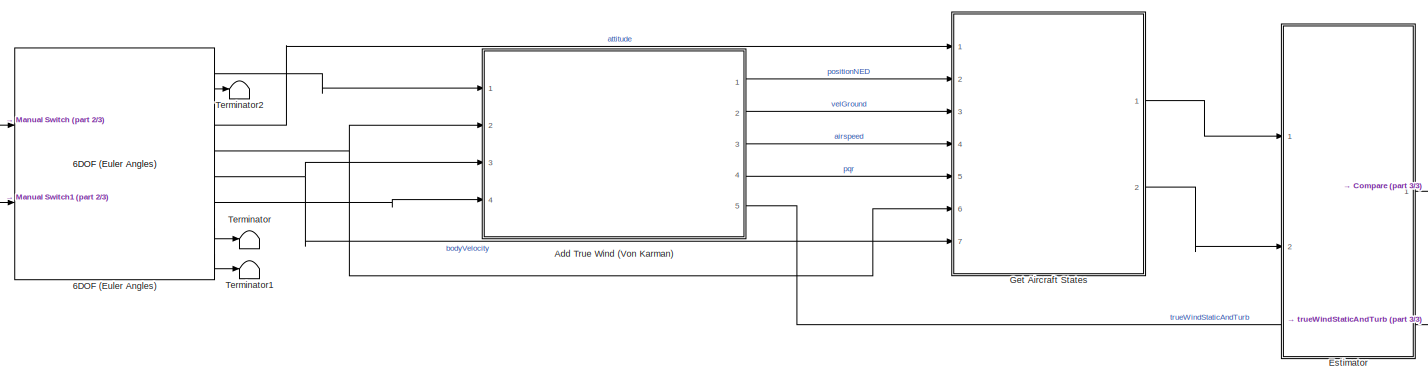
[diagram: root canvas - part 1/3, center side, full height]
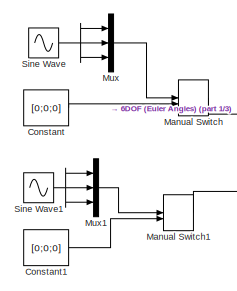
[diagram: root canvas - part 2/3, middle left region]
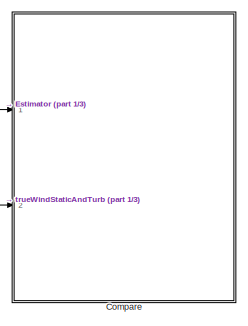
[diagram: root canvas - part 3/3, middle right region]
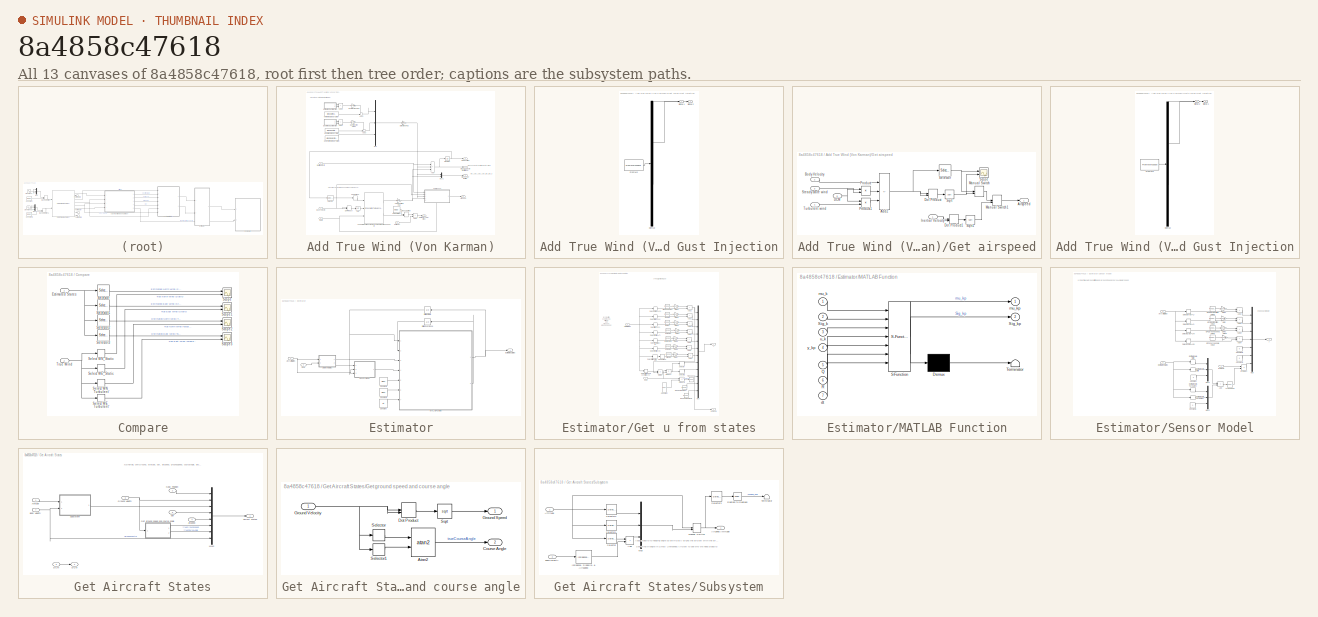
[diagram: thumbnail index - all 13 canvases of the model, root first then tree order]
MODEL slx_8a4858c47618
KIND model
CONFIG AbsTol = auto
CONFIG EnableMultiTasking = off
CONFIG FixedStep = dt
CONFIG MaxStep = auto
CONFIG MinStep = auto
CONFIG RelTol = 1e-3
CONFIG SampleTimeConstraint = Unconstrained
CONFIG Solver = ode4
CONFIG SolverName = ode4
CONFIG StartTime = 0.0
CONFIG StopTime = 100
BLOCK [Reference] 6DOF (Euler Angles)  REF=shared6dof/6DOF (Euler Angles)
  Ports = [2, 8]
  SourceBlock = shared6dof/6DOF (Euler Angles)
  SourceProductBaseCode = AE,PW,MT,VE,VP
  SourceType = 6DOF EoM (Body Axis)
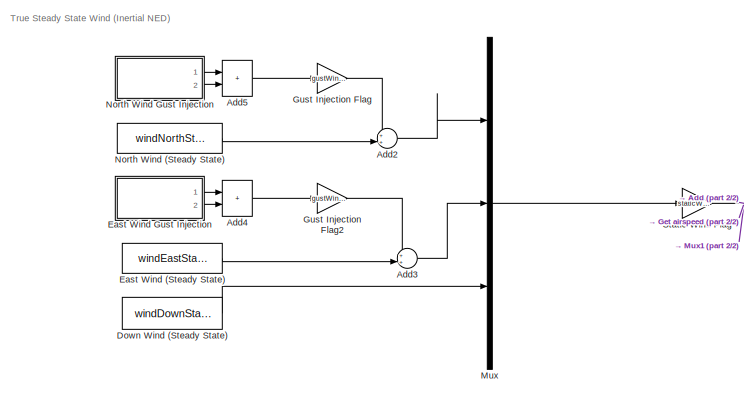
[diagram: Add True Wind (Von Karman) - part 1/2, top left region]
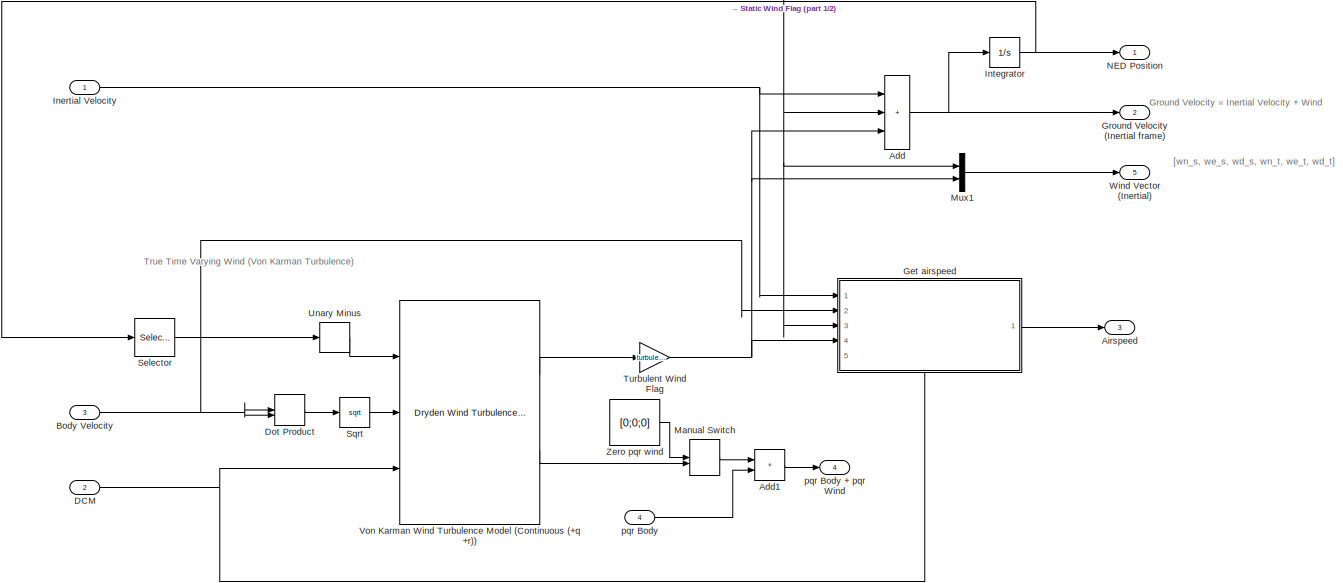
[diagram: Add True Wind (Von Karman) - part 2/2, full width, bottom band]
BLOCK [SubSystem] Add True Wind (Von Karman)
  Ports = [4, 5]
  RequestExecContextInheritance = off
BLOCK [Sum] Add True Wind (Von Karman)/Add
  IconShape = rectangular
  Inputs = +++
  Ports = [3, 1]
BLOCK [Sum] Add True Wind (Von Karman)/Add1
  IconShape = rectangular
  Ports = [2, 1]
BLOCK [Sum] Add True Wind (Von Karman)/Add2
  Inputs = ++|
  Ports = [2, 1]
BLOCK [Sum] Add True Wind (Von Karman)/Add3
  Inputs = ++|
  Ports = [2, 1]
BLOCK [Sum] Add True Wind (Von Karman)/Add4
  IconShape = rectangular
  Ports = [2, 1]
BLOCK [Sum] Add True Wind (Von Karman)/Add5
  IconShape = rectangular
  Ports = [2, 1]
BLOCK [Outport] Add True Wind (Von Karman)/Airspeed
  Port = 3
  PortDimensions = 1
BLOCK [Inport] Add True Wind (Von Karman)/Body Velocity
  Port = 3
BLOCK [Inport] Add True Wind (Von Karman)/DCM
  Port = 2
BLOCK [DotProduct] Add True Wind (Von Karman)/Dot Product
  OutDataTypeStr = Inherit: Inherit via internal rule
BLOCK [Constant] Add True Wind (Von Karman)/Down Wind (Steady State)
  Value = windDownStatic
BLOCK [Constant] Add True Wind (Von Karman)/East Wind (Steady State)
  Value = windEastStatic
BLOCK [SubSystem] Add True Wind (Von Karman)/East Wind Gust Injection
  ClipboardFcn = sigbuilder_block('clipboard');
  CloseFcn = sigbuilder_block('close');
  ContinueFcn = sigbuilder_block('continue');
  CopyFcn = sigbuilder_block('copy');
  DeleteFcn = sigbuilder_block('delete');
  LoadFcn = sigbuilder_block('load');
  MaskHideContents = on
  ModelCloseFcn = sigbuilder_block('modelClose');
  NameChangeFcn = sigbuilder_block('namechange');
  OpenFcn = sigbuilder_block('open',[0 0 607.5 297 ]);
  PauseFcn = sigbuilder_block('pause');
  Ports = [0, 2]
  PreSaveFcn = sigbuilder_block('preSave');
  RequestExecContextInheritance = off
  StartFcn = sigbuilder_block('start');
  StopFcn = sigbuilder_block('stop');
  Tag = STV Subsys
BLOCK [Demux] Add True Wind (Von Karman)/East Wind Gust Injection/Demux
  DisplayOption = none
  Outputs = 2
  Ports = [1, 2]
  Tag = STV Demux
BLOCK [FromWorkspace] Add True Wind (Von Karman)/East Wind Gust Injection/FromWs
  Tag = STV FromWs
  VariableName = tuvar
BLOCK [Outport] Add True Wind (Von Karman)/East Wind Gust Injection/Signal 1
  Tag = STV Outport
BLOCK [Outport] Add True Wind (Von Karman)/East Wind Gust Injection/Signal 2
  Port = 2
  Tag = STV Outport
BLOCK [SubSystem] Add True Wind (Von Karman)/Get airspeed
  NameLocation = top
  PortSchema = {"entries":[{"content":{"sides":[{"content":{"connectorIds":["In1","In2","In3","In4"]},"type":"ConnectorPlacement.EquallySpacedRectSide","uuid":"813c2b5b-04f3-4ec3-a969-2504c20ca38b"},{"content":{"connectorIds":["Out1"],"side":"RIGHT"},"type":"ConnectorPlacement.EquallySpacedRectSide","uuid":"9f878792-4dd4-4000-acee-7f28349bdd5f"},{"content":{"connectorIds":[],"side":"TOP"},"type":"ConnectorPlacem...<+409ch>
  Ports = [5, 1]
  RequestExecContextInheritance = off
BLOCK [Sum] Add True Wind (Von Karman)/Get airspeed/Add2
  IconShape = rectangular
  Inputs = +--
  Ports = [3, 1]
BLOCK [Outport] Add True Wind (Von Karman)/Get airspeed/Airspeed
BLOCK [Inport] Add True Wind (Von Karman)/Get airspeed/Body Velocity
  Port = 2
BLOCK [Inport] Add True Wind (Von Karman)/Get airspeed/DCM
  Port = 5
BLOCK [DotProduct] Add True Wind (Von Karman)/Get airspeed/Dot Product
  OutDataTypeStr = Inherit: Inherit via internal rule
BLOCK [DotProduct] Add True Wind (Von Karman)/Get airspeed/Dot Product1
  OutDataTypeStr = Inherit: Inherit via internal rule
BLOCK [Inport] Add True Wind (Von Karman)/Get airspeed/Inertial Velocity
BLOCK [ManualSwitch] Add True Wind (Von Karman)/Get airspeed/Manual Switch
  CurrentSetting = 0
BLOCK [ManualSwitch] Add True Wind (Von Karman)/Get airspeed/Manual Switch1
  CurrentSetting = 0
BLOCK [Product] Add True Wind (Von Karman)/Get airspeed/Product
  Multiplication = Matrix(*)
  Ports = [2, 1]
BLOCK [Product] Add True Wind (Von Karman)/Get airspeed/Product1
  Multiplication = Matrix(*)
  Ports = [2, 1]
BLOCK [Scope] Add True Wind (Von Karman)/Get airspeed/Scope
  Floating = off
  NumInputPorts = 2
  Ports = [2]
  ScopeSpecificationString = Simulink.scopes.TimeScopeBlockCfg('CurrentConfiguration', extmgr.ConfigurationSet(extmgr.Configuration('Core','General UI',true),extmgr.Configuration('Core','Source UI',true),extmgr.Configuration('Sources','WiredSimulink',true,'DataLoggingVariableName','ScopeData1'),extmgr.Configuration('Visuals','Time Domain',true,'SerializedDisplays',{struct('MinYLimReal','74.38805','MaxYLimReal','97.51649','YLa...<+1503ch>
BLOCK [Selector] Add True Wind (Von Karman)/Get airspeed/Selector
  IndexOptions = Index vector (dialog)
  Indices = 1
  InputPortWidth = 3
  OutputSizes = 1
  Ports = [1, 1]
BLOCK [Sqrt] Add True Wind (Von Karman)/Get airspeed/Sqrt
BLOCK [Sqrt] Add True Wind (Von Karman)/Get airspeed/Sqrt1
BLOCK [Inport] Add True Wind (Von Karman)/Get airspeed/Steady state wind
  Port = 3
BLOCK [Inport] Add True Wind (Von Karman)/Get airspeed/Turbulent wind
  Port = 4
BLOCK [Outport] Add True Wind (Von Karman)/Ground Velocity (Inertial frame)
  Port = 2
BLOCK [Gain] Add True Wind (Von Karman)/Gust Injection Flag
  Gain = gustWindFlag
BLOCK [Gain] Add True Wind (Von Karman)/Gust Injection Flag2
  Gain = gustWindFlag
BLOCK [Inport] Add True Wind (Von Karman)/Inertial Velocity
BLOCK [Integrator] Add True Wind (Von Karman)/Integrator
  InitialCondition = [0, 0, -abs(alt0)]
  Ports = [1, 1]
BLOCK [ManualSwitch] Add True Wind (Von Karman)/Manual Switch
BLOCK [Mux] Add True Wind (Von Karman)/Mux
  DisplayOption = bar
  Inputs = 3
  Ports = [3, 1]
BLOCK [Mux] Add True Wind (Von Karman)/Mux1
  DisplayOption = bar
  Inputs = 2
  Ports = [2, 1]
BLOCK [Outport] Add True Wind (Von Karman)/NED Position
  PortDimensions = 3
BLOCK [Constant] Add True Wind (Von Karman)/North Wind (Steady State)
  Value = windNorthStatic
BLOCK [SubSystem] Add True Wind (Von Karman)/North Wind Gust Injection
  ClipboardFcn = sigbuilder_block('clipboard');
  CloseFcn = sigbuilder_block('close');
  ContinueFcn = sigbuilder_block('continue');
  CopyFcn = sigbuilder_block('copy');
  DeleteFcn = sigbuilder_block('delete');
  LoadFcn = sigbuilder_block('load');
  MaskHideContents = on
  ModelCloseFcn = sigbuilder_block('modelClose');
  NameChangeFcn = sigbuilder_block('namechange');
  OpenFcn = sigbuilder_block('open',[0 0 607.5 297 ]);
  PauseFcn = sigbuilder_block('pause');
  Ports = [0, 2]
  PreSaveFcn = sigbuilder_block('preSave');
  RequestExecContextInheritance = off
  StartFcn = sigbuilder_block('start');
  StopFcn = sigbuilder_block('stop');
  Tag = STV Subsys
BLOCK [Demux] Add True Wind (Von Karman)/North Wind Gust Injection/Demux
  DisplayOption = none
  Outputs = 2
  Ports = [1, 2]
  Tag = STV Demux
BLOCK [FromWorkspace] Add True Wind (Von Karman)/North Wind Gust Injection/FromWs
  Tag = STV FromWs
  VariableName = tuvar
BLOCK [Outport] Add True Wind (Von Karman)/North Wind Gust Injection/Signal 1
  Port = 2
  Tag = STV Outport
BLOCK [Outport] Add True Wind (Von Karman)/North Wind Gust Injection/Signal 2
  Tag = STV Outport
BLOCK [Selector] Add True Wind (Von Karman)/Selector
  IndexOptions = Index vector (dialog)
  Indices = 3
  InputPortWidth = 3
  OutputSizes = 1
  Ports = [1, 1]
BLOCK [Sqrt] Add True Wind (Von Karman)/Sqrt
BLOCK [Gain] Add True Wind (Von Karman)/Static Wind Flag
  Gain = staticWindFlag
BLOCK [Gain] Add True Wind (Von Karman)/Turbulent Wind Flag
  Gain = turbulentWindFlag
BLOCK [UnaryMinus] Add True Wind (Von Karman)/Unary Minus
BLOCK [Reference] Add True Wind (Von Karman)/Von Karman Wind Turbulence Model (Continuous (+q +r))  REF=aerolibwind2/Dryden Wind Turbulence Model 
(Continuous (+q -r))
  Ports = [3, 2]
  SourceBlock = aerolibwind2/Dryden Wind Turbulence Model \n(Continuous (+q -r))
  SourceProductBaseCode = AE
  SourceType = Wind Turbulence Model
BLOCK [Outport] Add True Wind (Von Karman)/Wind Vector (Inertial)
  Port = 5
BLOCK [Constant] Add True Wind (Von Karman)/Zero pqr wind
  Value = [0;0;0]
BLOCK [Inport] Add True Wind (Von Karman)/pqr Body
  Port = 4
BLOCK [Outport] Add True Wind (Von Karman)/pqr Body + pqr Wind
  Port = 4
BLOCK [SubSystem] Compare
  Ports = [2]
  RequestExecContextInheritance = off
BLOCK [Inport] Compare/Estimated States
BLOCK [Scope] Compare/Scope
  Floating = off
  NumInputPorts = 2
  Ports = [2]
  ScopeSpecificationString = Simulink.scopes.TimeScopeBlockCfg('CurrentConfiguration', extmgr.ConfigurationSet(extmgr.Configuration('Core','General UI',true),extmgr.Configuration('Core','Source UI',true),extmgr.Configuration('Sources','WiredSimulink',true),extmgr.Configuration('Visuals','Time Domain',true,'SerializedDisplays',{struct('MinYLimReal','-384.04566','MaxYLimReal','42.67174','YLabelReal','','MinYLimMag',' 0.00000','...<+1468ch>
BLOCK [Scope] Compare/Scope1
  Floating = off
  NumInputPorts = 2
  Ports = [2]
  ScopeSpecificationString = Simulink.scopes.TimeScopeBlockCfg('CurrentConfiguration', extmgr.ConfigurationSet(extmgr.Configuration('Core','General UI',true),extmgr.Configuration('Core','Source UI',true),extmgr.Configuration('Sources','WiredSimulink',true,'DataLoggingVariableName','ScopeData2'),extmgr.Configuration('Visuals','Time Domain',true,'SerializedDisplays',{struct('MinYLimReal','-92.48403','MaxYLimReal','92.25057','YL...<+1498ch>
BLOCK [Scope] Compare/Scope2
  Floating = off
  NumInputPorts = 2
  Ports = [2]
  ScopeSpecificationString = Simulink.scopes.TimeScopeBlockCfg('CurrentConfiguration', extmgr.ConfigurationSet(extmgr.Configuration('Core','General UI',true),extmgr.Configuration('Core','Source UI',true),extmgr.Configuration('Sources','WiredSimulink',true,'DataLoggingVariableName','ScopeData1'),extmgr.Configuration('Visuals','Time Domain',true,'SerializedDisplays',{struct('MinYLimReal','-94.84977','MaxYLimReal','104.36451','Y...<+1502ch>
BLOCK [Scope] Compare/Scope3
  Floating = off
  NumInputPorts = 2
  Ports = [2]
  ScopeSpecificationString = Simulink.scopes.TimeScopeBlockCfg('CurrentConfiguration', extmgr.ConfigurationSet(extmgr.Configuration('Core','General UI',true),extmgr.Configuration('Core','Source UI',true),extmgr.Configuration('Sources','WiredSimulink',true,'DataLoggingVariableName','ScopeData2'),extmgr.Configuration('Visuals','Time Domain',true,'SerializedDisplays',{struct('MinYLimReal','-94.84977','MaxYLimReal','104.36451','Y...<+1502ch>
BLOCK [Selector] Compare/Select WE_Static
  IndexOptions = Index vector (dialog)
  Indices = 2
  InputPortWidth = 6
  OutputSizes = 1
  Ports = [1, 1]
BLOCK [Selector] Compare/Select WE_Turbulent
  IndexOptions = Index vector (dialog)
  Indices = 5
  InputPortWidth = 6
  OutputSizes = 1
  Ports = [1, 1]
BLOCK [Selector] Compare/Select WN_Static
  IndexOptions = Index vector (dialog)
  Indices = 1
  InputPortWidth = 6
  OutputSizes = 1
  Ports = [1, 1]
BLOCK [Selector] Compare/Select WN_Turbulent
  IndexOptions = Index vector (dialog)
  Indices = 4
  InputPortWidth = 6
  OutputSizes = 1
  Ports = [1, 1]
BLOCK [Selector] Compare/Selector
  IndexOptions = Index vector (dialog)
  Indices = 5
  InputPortWidth = nEstStates
  OutputSizes = 1
  Ports = [1, 1]
BLOCK [Selector] Compare/Selector1
  IndexOptions = Index vector (dialog)
  Indices = 6
  InputPortWidth = nEstStates
  OutputSizes = 1
  Ports = [1, 1]
BLOCK [Selector] Compare/Selector2
  IndexOptions = Index vector (dialog)
  Indices = 7
  InputPortWidth = nEstStates
  OutputSizes = 1
  Ports = [1, 1]
BLOCK [Selector] Compare/Selector3
  IndexOptions = Index vector (dialog)
  Indices = 8
  InputPortWidth = nEstStates
  OutputSizes = 1
  Ports = [1, 1]
BLOCK [Inport] Compare/True Wind
  Port = 2
BLOCK [Constant] Constant
  Value = [0;0;0]
BLOCK [Constant] Constant1
  Value = [0;0;0]
BLOCK [SubSystem] Estimator
  Ports = [2, 1]
  RequestExecContextInheritance = off
BLOCK [Inport] Estimator/Aircraft States
BLOCK [Constant] Estimator/Constant
  Value = dt
BLOCK [Constant] Estimator/Constant1
  Value = Qekf
BLOCK [Constant] Estimator/Constant2
  Value = Rekf
BLOCK [Inport] Estimator/DCM
  Port = 2
BLOCK [Outport] Estimator/Estimated States
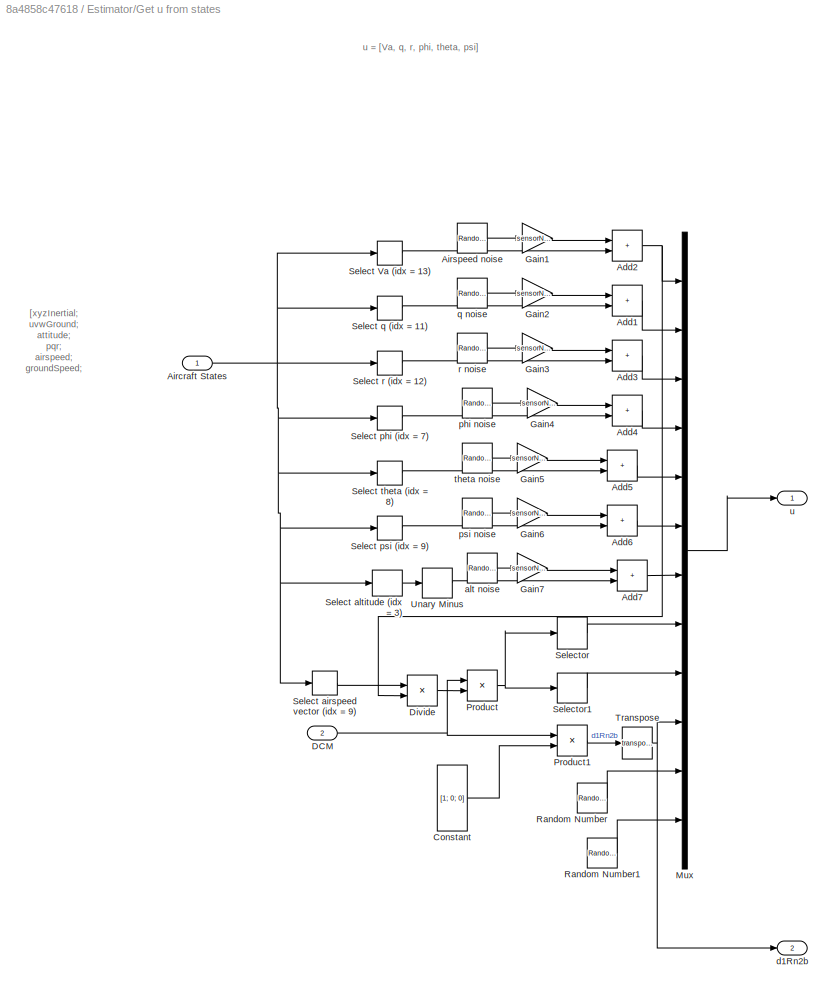
BLOCK [SubSystem] Estimator/Get u from states
  Ports = [2, 2]
  RequestExecContextInheritance = off
BLOCK [Sum] Estimator/Get u from states/Add1
  IconShape = rectangular
  Ports = [2, 1]
BLOCK [Sum] Estimator/Get u from states/Add2
  IconShape = rectangular
  Ports = [2, 1]
BLOCK [Sum] Estimator/Get u from states/Add3
  IconShape = rectangular
  Ports = [2, 1]
BLOCK [Sum] Estimator/Get u from states/Add4
  IconShape = rectangular
  Ports = [2, 1]
BLOCK [Sum] Estimator/Get u from states/Add5
  IconShape = rectangular
  Ports = [2, 1]
BLOCK [Sum] Estimator/Get u from states/Add6
  IconShape = rectangular
  Ports = [2, 1]
BLOCK [Sum] Estimator/Get u from states/Add7
  IconShape = rectangular
  Ports = [2, 1]
BLOCK [Inport] Estimator/Get u from states/Aircraft States
BLOCK [RandomNumber] Estimator/Get u from states/Airspeed noise
  SampleTime = dt
  Variance = var.airspeed_mps
BLOCK [Constant] Estimator/Get u from states/Constant
  Value = [1; 0; 0]
  VectorParams1D = off
BLOCK [Inport] Estimator/Get u from states/DCM
  Port = 2
BLOCK [Product] Estimator/Get u from states/Divide
  Inputs = */
  Ports = [2, 1]
BLOCK [Gain] Estimator/Get u from states/Gain1
  Gain = sensorNoiseFlag
BLOCK [Gain] Estimator/Get u from states/Gain2
  Gain = sensorNoiseFlag
BLOCK [Gain] Estimator/Get u from states/Gain3
  Gain = sensorNoiseFlag
BLOCK [Gain] Estimator/Get u from states/Gain4
  Gain = sensorNoiseFlag
BLOCK [Gain] Estimator/Get u from states/Gain5
  Gain = sensorNoiseFlag
BLOCK [Gain] Estimator/Get u from states/Gain6
  Gain = sensorNoiseFlag
BLOCK [Gain] Estimator/Get u from states/Gain7
  Gain = sensorNoiseFlag
BLOCK [Mux] Estimator/Get u from states/Mux
  DisplayOption = bar
  Inputs = 12
  Ports = [12, 1]
BLOCK [Product] Estimator/Get u from states/Product
  Multiplication = Matrix(*)
  Ports = [2, 1]
BLOCK [Product] Estimator/Get u from states/Product1
  Multiplication = Matrix(*)
  Ports = [2, 1]
BLOCK [RandomNumber] Estimator/Get u from states/Random Number
  SampleTime = 0.1
BLOCK [RandomNumber] Estimator/Get u from states/Random Number1
  SampleTime = 0.1
  Seed = 100
BLOCK [Selector] Estimator/Get u from states/Select Va (idx = 13)
  IndexOptions = Index vector (dialog)
  Indices = 13
  InputPortWidth = nStates
  OutputSizes = 1
  Ports = [1, 1]
BLOCK [Selector] Estimator/Get u from states/Select airspeed vector (idx = 9)
  IndexOptions = Index vector (dialog)
  Indices = [16:18]
  InputPortWidth = nStates
  OutputSizes = 1
  Ports = [1, 1]
BLOCK [Selector] Estimator/Get u from states/Select altitude (idx = 3)
  IndexOptions = Index vector (dialog)
  Indices = 3
  InputPortWidth = nStates
  OutputSizes = 1
  Ports = [1, 1]
BLOCK [Selector] Estimator/Get u from states/Select phi (idx = 7)
  IndexOptions = Index vector (dialog)
  Indices = 7
  InputPortWidth = nStates
  OutputSizes = 1
  Ports = [1, 1]
BLOCK [Selector] Estimator/Get u from states/Select psi (idx = 9)
  IndexOptions = Index vector (dialog)
  Indices = 9
  InputPortWidth = nStates
  OutputSizes = 1
  Ports = [1, 1]
BLOCK [Selector] Estimator/Get u from states/Select q (idx = 11)
  IndexOptions = Index vector (dialog)
  Indices = 11
  InputPortWidth = nStates
  OutputSizes = 1
  Ports = [1, 1]
BLOCK [Selector] Estimator/Get u from states/Select r (idx = 12)
  IndexOptions = Index vector (dialog)
  Indices = 12
  InputPortWidth = nStates
  OutputSizes = 1
  Ports = [1, 1]
BLOCK [Selector] Estimator/Get u from states/Select theta (idx = 8)
  IndexOptions = Index vector (dialog)
  Indices = 8
  InputPortWidth = nStates
  OutputSizes = 1
  Ports = [1, 1]
BLOCK [Selector] Estimator/Get u from states/Selector
  IndexOptions = Index vector (dialog)
  Indices = 1
  InputPortWidth = 3
  OutputSizes = 1
  Ports = [1, 1]
BLOCK [Selector] Estimator/Get u from states/Selector1
  IndexOptions = Index vector (dialog)
  Indices = 2
  InputPortWidth = 3
  OutputSizes = 1
  Ports = [1, 1]
BLOCK [Math] Estimator/Get u from states/Transpose
  Operator = transpose
  Ports = [1, 1]
BLOCK [UnaryMinus] Estimator/Get u from states/Unary Minus
BLOCK [RandomNumber] Estimator/Get u from states/alt noise
  SampleTime = dt
  Variance = var.altitude_m
BLOCK [Outport] Estimator/Get u from states/d1Rn2b
  Port = 2
BLOCK [RandomNumber] Estimator/Get u from states/phi noise
  SampleTime = dt
  Variance = var.attitude_rad
BLOCK [RandomNumber] Estimator/Get u from states/psi noise
  SampleTime = dt
  Variance = var.attitude_rad * 4
BLOCK [RandomNumber] Estimator/Get u from states/q noise
  SampleTime = 0.1
  Variance = var.pqr_radps
BLOCK [RandomNumber] Estimator/Get u from states/r noise
  SampleTime = dt
  Variance = var.pqr_radps
BLOCK [RandomNumber] Estimator/Get u from states/theta noise
  SampleTime = dt
  Variance = var.attitude_rad
BLOCK [Outport] Estimator/Get u from states/u
BLOCK [UnitDelay] Estimator/Initial Covariance
  HasFrameUpgradeWarning = on
  InitialCondition = initCovarianceEkf
  SampleTime = -1
BLOCK [UnitDelay] Estimator/Initial Estimate
  HasFrameUpgradeWarning = on
  InitialCondition = initEstimateEkf
  SampleTime = -1
BLOCK [SubSystem] Estimator/MATLAB Function
  ErrorFcn = Stateflow.Translate.translate
  PermitHierarchicalResolution = ExplicitOnly
  Ports = [7, 2]
  RequestExecContextInheritance = off
  SFBlockType = MATLAB Function
  TreatAsAtomicUnit = on
BLOCK [Demux] Estimator/MATLAB Function/ Demux 
  Outputs = 1
  Ports = [1, 1]
BLOCK [S-Function] Estimator/MATLAB Function/ SFunction 
  EnableBusSupport = on
  FunctionName = sf_sfun
  PortCounts = [7 3]
  Ports = [7, 3]
  SFcnIsStateOwnerBlock = off
  SFunctionDeploymentMode = off
  Tag = Stateflow S-Function 5
BLOCK [Terminator] Estimator/MATLAB Function/ Terminator 
BLOCK [Inport] Estimator/MATLAB Function/Q
  Port = 5
BLOCK [Inport] Estimator/MATLAB Function/R
  Port = 6
BLOCK [Inport] Estimator/MATLAB Function/Sig_k
  Port = 2
BLOCK [Outport] Estimator/MATLAB Function/Sig_kp
  Port = 2
BLOCK [Inport] Estimator/MATLAB Function/dt
  Port = 7
BLOCK [Inport] Estimator/MATLAB Function/mu_k
BLOCK [Outport] Estimator/MATLAB Function/mu_kp
BLOCK [Inport] Estimator/MATLAB Function/u_k
  Port = 3
BLOCK [Inport] Estimator/MATLAB Function/y_kp
  Port = 4
BLOCK [SubSystem] Estimator/Sensor Model
  Ports = [3, 1]
  RequestExecContextInheritance = off
BLOCK [Sum] Estimator/Sensor Model/Add
  IconShape = rectangular
  Ports = [2, 1]
BLOCK [Sum] Estimator/Sensor Model/Add1
  IconShape = rectangular
  Ports = [2, 1]
BLOCK [Sum] Estimator/Sensor Model/Add2
  IconShape = rectangular
  Ports = [2, 1]
BLOCK [Sum] Estimator/Sensor Model/Add3
  IconShape = rectangular
  Ports = [2, 1]
BLOCK [Sum] Estimator/Sensor Model/Add4
  IconShape = rectangular
  Ports = [2, 1]
BLOCK [Inport] Estimator/Sensor Model/Aircraft States
  Port = 2
BLOCK [Constant] Estimator/Sensor Model/Constant
  Value = 0
BLOCK [Constant] Estimator/Sensor Model/Constant1
  Value = 0
BLOCK [Constant] Estimator/Sensor Model/Constant2
  Value = 0
BLOCK [Constant] Estimator/Sensor Model/Constant3
  Value = 0
BLOCK [Inport] Estimator/Sensor Model/Estimated States
  Port = 3
BLOCK [Selector] Estimator/Sensor Model/Estimated WE Static
  IndexOptions = Index vector (dialog)
  Indices = 6
  InputPortWidth = nEstStates
  OutputSizes = 1
  Ports = [1, 1]
BLOCK [Selector] Estimator/Sensor Model/Estimated WE Turbulent
  IndexOptions = Index vector (dialog)
  Indices = 8
  InputPortWidth = nEstStates
  OutputSizes = 1
  Ports = [1, 1]
BLOCK [Selector] Estimator/Sensor Model/Estimated WN Static
  IndexOptions = Index vector (dialog)
  Indices = 5
  InputPortWidth = nEstStates
  OutputSizes = 1
  Ports = [1, 1]
BLOCK [Selector] Estimator/Sensor Model/Estimated WN Turbulent
  IndexOptions = Index vector (dialog)
  Indices = 7
  InputPortWidth = nEstStates
  OutputSizes = 1
  Ports = [1, 1]
BLOCK [RandomNumber] Estimator/Sensor Model/GPS East position noise
  SampleTime = dt
  Variance = var.position_m
BLOCK [RandomNumber] Estimator/Sensor Model/GPS North position noise
  SampleTime = dt
  Variance = var.position_m
BLOCK [RandomNumber] Estimator/Sensor Model/GPS course angle noise
  SampleTime = dt
  Variance = var.attitude_rad
BLOCK [RandomNumber] Estimator/Sensor Model/GPS ground speed noise
  SampleTime = dt
  Variance = var.velocityGps_mps
BLOCK [Gain] Estimator/Sensor Model/Gain
  Gain = sensorNoiseFlag
BLOCK [Gain] Estimator/Sensor Model/Gain1
  Gain = sensorNoiseFlag
BLOCK [Gain] Estimator/Sensor Model/Gain2
  Gain = sensorNoiseFlag
BLOCK [Gain] Estimator/Sensor Model/Gain3
  Gain = sensorNoiseFlag
BLOCK [Mux] Estimator/Sensor Model/Mux
  DisplayOption = bar
  Inputs = 7
  Ports = [7, 1]
BLOCK [Mux] Estimator/Sensor Model/Mux1
  DisplayOption = bar
  Inputs = 3
  Ports = [3, 1]
BLOCK [Mux] Estimator/Sensor Model/Mux2
  DisplayOption = bar
  Inputs = 3
  Ports = [3, 1]
BLOCK [Product] Estimator/Sensor Model/Product
  Multiplication = Matrix(*)
  Ports = [2, 1]
BLOCK [Selector] Estimator/Sensor Model/Select chi (idx = 15)
  IndexOptions = Index vector (dialog)
  Indices = 15
  InputPortWidth = nStates
  OutputSizes = 1
  Ports = [1, 1]
BLOCK [Selector] Estimator/Sensor Model/Select pe (idx = 2)
  IndexOptions = Index vector (dialog)
  Indices = 2
  InputPortWidth = nStates
  OutputSizes = 1
  Ports = [1, 1]
BLOCK [Selector] Estimator/Sensor Model/Select pn (idx = 1)
  IndexOptions = Index vector (dialog)
  Indices = 1
  InputPortWidth = nStates
  OutputSizes = 1
  Ports = [1, 1]
BLOCK [Selector] Estimator/Sensor Model/Select vg (idx = 14)
  IndexOptions = Index vector (dialog)
  Indices = 14
  InputPortWidth = nStates
  OutputSizes = 1
  Ports = [1, 1]
BLOCK [Math] Estimator/Sensor Model/Transpose
  Operator = transpose
  Ports = [1, 1]
BLOCK [Inport] Estimator/Sensor Model/d1Rn2b
BLOCK [Outport] Estimator/Sensor Model/y
BLOCK [SubSystem] Get Aircraft States
  Ports = [7, 2]
  RequestExecContextInheritance = off
BLOCK [Outport] Get Aircraft States/Aircraft States
BLOCK [Inport] Get Aircraft States/Airspeed
  Port = 4
BLOCK [Inport] Get Aircraft States/Attitude
BLOCK [Inport] Get Aircraft States/Body Velocity
  Port = 7
BLOCK [Outport] Get Aircraft States/DCM
  Port = 2
BLOCK [Inport] Get Aircraft States/DCM 
  Port = 6
BLOCK [SubSystem] Get Aircraft States/Get ground speed and course angle
  Ports = [1, 2]
  RequestExecContextInheritance = off
BLOCK [Trigonometry] Get Aircraft States/Get ground speed and course angle/Atan2
  Operator = atan2
  Ports = [2, 1]
BLOCK [Outport] Get Aircraft States/Get ground speed and course angle/Course Angle
  Port = 2
BLOCK [DotProduct] Get Aircraft States/Get ground speed and course angle/Dot Product
  OutDataTypeStr = Inherit: Inherit via internal rule
BLOCK [Outport] Get Aircraft States/Get ground speed and course angle/Ground Speed
BLOCK [Inport] Get Aircraft States/Get ground speed and course angle/Ground Velocity
BLOCK [Selector] Get Aircraft States/Get ground speed and course angle/Selector
  IndexOptions = Index vector (dialog)
  Indices = 2
  InputPortWidth = 3
  OutputSizes = 1
  Ports = [1, 1]
BLOCK [Selector] Get Aircraft States/Get ground speed and course angle/Selector1
  IndexOptions = Index vector (dialog)
  Indices = 1
  InputPortWidth = 3
  OutputSizes = 1
  Ports = [1, 1]
BLOCK [Sqrt] Get Aircraft States/Get ground speed and course angle/Sqrt
BLOCK [Inport] Get Aircraft States/Ground Velocity
  Port = 3
BLOCK [Mux] Get Aircraft States/Mux2
  DisplayOption = bar
  Inputs = 8
  Ports = [8, 1]
BLOCK [Inport] Get Aircraft States/NED Position
  Port = 2
BLOCK [SubSystem] Get Aircraft States/Subsystem
  Ports = [2, 1]
  RequestExecContextInheritance = off
BLOCK [Sum] Get Aircraft States/Subsystem/Add
  IconShape = rectangular
  Ports = [2, 1]
BLOCK [Outport] Get Aircraft States/Subsystem/Aligned Attitude
BLOCK [Inport] Get Aircraft States/Subsystem/Attitude
BLOCK [Reference] Get Aircraft States/Subsystem/Incidence, Sideslip, & Airspeed  REF=aerolibasang/Incidence, Sideslip,
& Airspeed
  Ports = [1, 3]
  SourceBlock = aerolibasang/Incidence, Sideslip,\n& Airspeed
  SourceProductBaseCode = AE
  SourceType = Incidence,Sideslip,&Airspeed
BLOCK [ManualSwitch] Get Aircraft States/Subsystem/Manual Switch
BLOCK [Mux] Get Aircraft States/Subsystem/Mux
  DisplayOption = bar
  Inputs = 3
  Ports = [3, 1]
BLOCK [Reference] Get Aircraft States/Subsystem/Radians to Degrees  REF=simulink_extras/Transformations/Radians
to Degrees
  Ports = [1, 1]
  SourceBlock = simulink_extras/Transformations/Radians\nto Degrees
  SourceProductBaseCode = SL
  SourceType = RadiansToDegrees
BLOCK [Selector] Get Aircraft States/Subsystem/Selector
  IndexOptions = Index vector (dialog)
  Indices = 3
  InputPortWidth = 3
  OutputSizes = 1
  Ports = [1, 1]
BLOCK [Selector] Get Aircraft States/Subsystem/Selector1
  IndexOptions = Index vector (dialog)
  Indices = 2
  InputPortWidth = 3
  OutputSizes = 1
  Ports = [1, 1]
BLOCK [Selector] Get Aircraft States/Subsystem/Selector2
  IndexOptions = Index vector (dialog)
  Indices = 1
  InputPortWidth = 3
  OutputSizes = 1
  Ports = [1, 1]
BLOCK [Selector] Get Aircraft States/Subsystem/Selector3
  IndexOptions = Index vector (dialog)
  Indices = 3
  InputPortWidth = 3
  OutputSizes = 1
  Ports = [1, 1]
BLOCK [Terminator] Get Aircraft States/Subsystem/Terminator
BLOCK [Inport] Get Aircraft States/Subsystem/bodyVelocity
  Port = 2
BLOCK [Inport] Get Aircraft States/pqr
  Port = 5
BLOCK [ManualSwitch] Manual Switch
  CurrentSetting = 0
BLOCK [ManualSwitch] Manual Switch1
  CurrentSetting = 0
BLOCK [Mux] Mux
  DisplayOption = bar
  Inputs = 3
  Ports = [3, 1]
BLOCK [Mux] Mux1
  DisplayOption = bar
  Inputs = 3
  Ports = [3, 1]
BLOCK [Sin] Sine Wave
  Ports = [0, 1]
  SampleTime = 0
BLOCK [Sin] Sine Wave1
  Ports = [0, 1]
  SampleTime = 0
BLOCK [Terminator] Terminator
BLOCK [Terminator] Terminator1
BLOCK [Terminator] Terminator2
ANNOTATION Add True Wind (Von Karman): Ground Velocity = Inertial Velocity + Wind
ANNOTATION Add True Wind (Von Karman): True Steady State Wind (Inertial NED)
ANNOTATION Add True Wind (Von Karman): True Time Varying Wind (Von Karman Turbulence)
ANNOTATION Add True Wind (Von Karman): [wn_s, we_s, wd_s, wn_t, we_t, wd_t]
ANNOTATION Estimator/Get u from states: [xyzInertial; uvwGround; attitude; pqr; airspeed; groundSpeed; courseAngle]
ANNOTATION Estimator/Get u from states: u = [Va, q, r, phi, theta, psi]
ANNOTATION Estimator/Sensor Model: pn, pe, vg, chi, wn, we
ANNOTATION Estimator/Sensor Model: xyzInertial, uvwGround, attitude, pqr, groundSpeed, courseAngle, airspeed
ANNOTATION Get Aircraft States: xyzInertial, uvwGround, attitude, pqr, airspeed, groundSpeed, courseAngle, airspeed vector
ANNOTATION Get Aircraft States/Subsystem: Adds sideslip to heading angle so artificially aligns the aircraft with the air-relative velocity with no sideslip. See wind triangle in Small Unmanned Aircraft to see why we need sideslip
LINE 6DOF (Euler Angles):1 -> Add True Wind (Von Karman):1
LINE 6DOF (Euler Angles):2 -> Terminator2:1
LINE 6DOF (Euler Angles):3 -> Get Aircraft States:1
NET 6DOF (Euler Angles):4 -> Add True Wind (Von Karman):2, Get Aircraft States:6
NET 6DOF (Euler Angles):5 -> Add True Wind (Von Karman):3, Get Aircraft States:7
LINE 6DOF (Euler Angles):6 -> Add True Wind (Von Karman):4
LINE 6DOF (Euler Angles):7 -> Terminator:1
LINE 6DOF (Euler Angles):8 -> Terminator1:1
LINE Add True Wind (Von Karman)/Add1:1 -> Add True Wind (Von Karman)/pqr Body + pqr Wind:1
LINE Add True Wind (Von Karman)/Add2:1 -> Add True Wind (Von Karman)/Mux:1
LINE Add True Wind (Von Karman)/Add3:1 -> Add True Wind (Von Karman)/Mux:2
LINE Add True Wind (Von Karman)/Add4:1 -> Add True Wind (Von Karman)/Gust Injection Flag2:1
LINE Add True Wind (Von Karman)/Add5:1 -> Add True Wind (Von Karman)/Gust Injection Flag:1
NET Add True Wind (Von Karman)/Add:1 -> Add True Wind (Von Karman)/Ground Velocity (Inertial frame):1, Add True Wind (Von Karman)/Integrator:1
NET Add True Wind (Von Karman)/Body Velocity:1 -> Add True Wind (Von Karman)/Dot Product:1, Add True Wind (Von Karman)/Dot Product:2, Add True Wind (Von Karman)/Get airspeed:2
NET Add True Wind (Von Karman)/DCM:1 -> Add True Wind (Von Karman)/Get airspeed:5, Add True Wind (Von Karman)/Von Karman Wind Turbulence Model (Continuous (+q +r)):3
LINE Add True Wind (Von Karman)/Dot Product:1 -> Add True Wind (Von Karman)/Sqrt:1
LINE Add True Wind (Von Karman)/Down Wind (Steady State):1 -> Add True Wind (Von Karman)/Mux:3
LINE Add True Wind (Von Karman)/East Wind (Steady State):1 -> Add True Wind (Von Karman)/Add3:2
LINE Add True Wind (Von Karman)/East Wind Gust Injection:1 -> Add True Wind (Von Karman)/Add4:1
LINE Add True Wind (Von Karman)/East Wind Gust Injection:2 -> Add True Wind (Von Karman)/Add4:2
NET Add True Wind (Von Karman)/Get airspeed/Add2:1 -> Add True Wind (Von Karman)/Get airspeed/Dot Product:1, Add True Wind (Von Karman)/Get airspeed/Dot Product:2, Add True Wind (Von Karman)/Get airspeed/Selector:1
LINE Add True Wind (Von Karman)/Get airspeed/Body Velocity:1 -> Add True Wind (Von Karman)/Get airspeed/Add2:1
NET Add True Wind (Von Karman)/Get airspeed/DCM:1 -> Add True Wind (Von Karman)/Get airspeed/Product1:1, Add True Wind (Von Karman)/Get airspeed/Product:1
LINE Add True Wind (Von Karman)/Get airspeed/Dot Product1:1 -> Add True Wind (Von Karman)/Get airspeed/Sqrt1:1
LINE Add True Wind (Von Karman)/Get airspeed/Dot Product:1 -> Add True Wind (Von Karman)/Get airspeed/Sqrt:1
NET Add True Wind (Von Karman)/Get airspeed/Inertial Velocity:1 -> Add True Wind (Von Karman)/Get airspeed/Dot Product1:1, Add True Wind (Von Karman)/Get airspeed/Dot Product1:2
LINE Add True Wind (Von Karman)/Get airspeed/Manual Switch1:1 -> Add True Wind (Von Karman)/Get airspeed/Airspeed:1
LINE Add True Wind (Von Karman)/Get airspeed/Manual Switch:1 -> Add True Wind (Von Karman)/Get airspeed/Manual Switch1:1
LINE Add True Wind (Von Karman)/Get airspeed/Product1:1 -> Add True Wind (Von Karman)/Get airspeed/Add2:3
LINE Add True Wind (Von Karman)/Get airspeed/Product:1 -> Add True Wind (Von Karman)/Get airspeed/Add2:2
NET Add True Wind (Von Karman)/Get airspeed/Selector:1 -> Add True Wind (Von Karman)/Get airspeed/Manual Switch:1, Add True Wind (Von Karman)/Get airspeed/Scope:1
LINE Add True Wind (Von Karman)/Get airspeed/Sqrt1:1 -> Add True Wind (Von Karman)/Get airspeed/Manual Switch1:2
NET Add True Wind (Von Karman)/Get airspeed/Sqrt:1 -> Add True Wind (Von Karman)/Get airspeed/Manual Switch:2, Add True Wind (Von Karman)/Get airspeed/Scope:2
LINE Add True Wind (Von Karman)/Get airspeed/Steady state wind:1 -> Add True Wind (Von Karman)/Get airspeed/Product:2
LINE Add True Wind (Von Karman)/Get airspeed/Turbulent wind:1 -> Add True Wind (Von Karman)/Get airspeed/Product1:2
LINE Add True Wind (Von Karman)/Get airspeed:1 -> Add True Wind (Von Karman)/Airspeed:1
LINE Add True Wind (Von Karman)/Gust Injection Flag2:1 -> Add True Wind (Von Karman)/Add3:1
LINE Add True Wind (Von Karman)/Gust Injection Flag:1 -> Add True Wind (Von Karman)/Add2:1
NET Add True Wind (Von Karman)/Inertial Velocity:1 -> Add True Wind (Von Karman)/Add:1, Add True Wind (Von Karman)/Get airspeed:1
NET Add True Wind (Von Karman)/Integrator:1 -> Add True Wind (Von Karman)/NED Position:1, Add True Wind (Von Karman)/Selector:1
LINE Add True Wind (Von Karman)/Manual Switch:1 -> Add True Wind (Von Karman)/Add1:1
LINE Add True Wind (Von Karman)/Mux1:1 -> Add True Wind (Von Karman)/Wind Vector (Inertial):1
LINE Add True Wind (Von Karman)/Mux:1 -> Add True Wind (Von Karman)/Static Wind Flag:1
LINE Add True Wind (Von Karman)/North Wind (Steady State):1 -> Add True Wind (Von Karman)/Add2:2
LINE Add True Wind (Von Karman)/North Wind Gust Injection:1 -> Add True Wind (Von Karman)/Add5:1
LINE Add True Wind (Von Karman)/North Wind Gust Injection:2 -> Add True Wind (Von Karman)/Add5:2
LINE Add True Wind (Von Karman)/Selector:1 -> Add True Wind (Von Karman)/Unary Minus:1
LINE Add True Wind (Von Karman)/Sqrt:1 -> Add True Wind (Von Karman)/Von Karman Wind Turbulence Model (Continuous (+q +r)):2
NET Add True Wind (Von Karman)/Static Wind Flag:1 -> Add True Wind (Von Karman)/Add:2, Add True Wind (Von Karman)/Get airspeed:3, Add True Wind (Von Karman)/Mux1:1
NET Add True Wind (Von Karman)/Turbulent Wind Flag:1 -> Add True Wind (Von Karman)/Add:3, Add True Wind (Von Karman)/Get airspeed:4, Add True Wind (Von Karman)/Mux1:2
LINE Add True Wind (Von Karman)/Unary Minus:1 -> Add True Wind (Von Karman)/Von Karman Wind Turbulence Model (Continuous (+q +r)):1
LINE Add True Wind (Von Karman)/Von Karman Wind Turbulence Model (Continuous (+q +r)):1 -> Add True Wind (Von Karman)/Turbulent Wind Flag:1
LINE Add True Wind (Von Karman)/Von Karman Wind Turbulence Model (Continuous (+q +r)):2 -> Add True Wind (Von Karman)/Manual Switch:2
LINE Add True Wind (Von Karman)/Zero pqr wind:1 -> Add True Wind (Von Karman)/Manual Switch:1
LINE Add True Wind (Von Karman)/pqr Body:1 -> Add True Wind (Von Karman)/Add1:2
LINE Add True Wind (Von Karman):1 -> Get Aircraft States:2
LINE Add True Wind (Von Karman):2 -> Get Aircraft States:3
LINE Add True Wind (Von Karman):3 -> Get Aircraft States:4
LINE Add True Wind (Von Karman):4 -> Get Aircraft States:5
LINE Add True Wind (Von Karman):5 -> Compare:2
NET Compare/Estimated States:1 -> Compare/Selector1:1, Compare/Selector2:1, Compare/Selector3:1, Compare/Selector:1
LINE Compare/Select WE_Static:1 -> Compare/Scope1:2
LINE Compare/Select WE_Turbulent:1 -> Compare/Scope3:2
LINE Compare/Select WN_Static:1 -> Compare/Scope:2
LINE Compare/Select WN_Turbulent:1 -> Compare/Scope2:2
LINE Compare/Selector1:1 -> Compare/Scope1:1
LINE Compare/Selector2:1 -> Compare/Scope2:1
LINE Compare/Selector3:1 -> Compare/Scope3:1
LINE Compare/Selector:1 -> Compare/Scope:1
NET Compare/True Wind:1 -> Compare/Select WE_Static:1, Compare/Select WE_Turbulent:1, Compare/Select WN_Static:1, Compare/Select WN_Turbulent:1
LINE Constant1:1 -> Manual Switch1:2
LINE Constant:1 -> Manual Switch:2
NET Estimator/Aircraft States:1 -> Estimator/Get u from states:1, Estimator/Sensor Model:2
LINE Estimator/Constant1:1 -> Estimator/MATLAB Function:5
LINE Estimator/Constant2:1 -> Estimator/MATLAB Function:6
LINE Estimator/Constant:1 -> Estimator/MATLAB Function:7
LINE Estimator/DCM:1 -> Estimator/Get u from states:2
LINE Estimator/Get u from states/Add1:1 -> Estimator/Get u from states/Mux:2
NET Estimator/Get u from states/Add2:1 -> Estimator/Get u from states/Divide:2, Estimator/Get u from states/Mux:1
LINE Estimator/Get u from states/Add3:1 -> Estimator/Get u from states/Mux:3
LINE Estimator/Get u from states/Add4:1 -> Estimator/Get u from states/Mux:4
LINE Estimator/Get u from states/Add5:1 -> Estimator/Get u from states/Mux:5
LINE Estimator/Get u from states/Add6:1 -> Estimator/Get u from states/Mux:6
LINE Estimator/Get u from states/Add7:1 -> Estimator/Get u from states/Mux:7
NET Estimator/Get u from states/Aircraft States:1 -> Estimator/Get u from states/Select Va (idx = 13):1, Estimator/Get u from states/Select airspeed vector (idx = 9):1, Estimator/Get u from states/Select altitude (idx = 3):1, Estimator/Get u from states/Select phi (idx = 7):1, Estimator/Get u from states/Select psi (idx = 9):1, Estimator/Get u from states/Select q (idx = 11):1, Estimator/Get u from states/Select r (idx = 12):1, Estimator/Get u from states/Select theta (idx = 8):1
LINE Estimator/Get u from states/Airspeed noise:1 -> Estimator/Get u from states/Gain1:1
LINE Estimator/Get u from states/Constant:1 -> Estimator/Get u from states/Product1:2
NET Estimator/Get u from states/DCM:1 -> Estimator/Get u from states/Product1:1, Estimator/Get u from states/Product:1
LINE Estimator/Get u from states/Divide:1 -> Estimator/Get u from states/Product:2
LINE Estimator/Get u from states/Gain1:1 -> Estimator/Get u from states/Add2:1
LINE Estimator/Get u from states/Gain2:1 -> Estimator/Get u from states/Add1:1
LINE Estimator/Get u from states/Gain3:1 -> Estimator/Get u from states/Add3:1
LINE Estimator/Get u from states/Gain4:1 -> Estimator/Get u from states/Add4:1
LINE Estimator/Get u from states/Gain5:1 -> Estimator/Get u from states/Add5:1
LINE Estimator/Get u from states/Gain6:1 -> Estimator/Get u from states/Add6:1
LINE Estimator/Get u from states/Gain7:1 -> Estimator/Get u from states/Add7:1
LINE Estimator/Get u from states/Mux:1 -> Estimator/Get u from states/u:1
LINE Estimator/Get u from states/Product1:1 -> Estimator/Get u from states/Transpose:1
NET Estimator/Get u from states/Product:1 -> Estimator/Get u from states/Selector1:1, Estimator/Get u from states/Selector:1
LINE Estimator/Get u from states/Random Number1:1 -> Estimator/Get u from states/Mux:12
LINE Estimator/Get u from states/Random Number:1 -> Estimator/Get u from states/Mux:11
LINE Estimator/Get u from states/Select Va (idx = 13):1 -> Estimator/Get u from states/Add2:2
LINE Estimator/Get u from states/Select airspeed vector (idx = 9):1 -> Estimator/Get u from states/Divide:1
LINE Estimator/Get u from states/Select altitude (idx = 3):1 -> Estimator/Get u from states/Unary Minus:1
LINE Estimator/Get u from states/Select phi (idx = 7):1 -> Estimator/Get u from states/Add4:2
LINE Estimator/Get u from states/Select psi (idx = 9):1 -> Estimator/Get u from states/Add6:2
LINE Estimator/Get u from states/Select q (idx = 11):1 -> Estimator/Get u from states/Add1:2
LINE Estimator/Get u from states/Select r (idx = 12):1 -> Estimator/Get u from states/Add3:2
LINE Estimator/Get u from states/Select theta (idx = 8):1 -> Estimator/Get u from states/Add5:2
LINE Estimator/Get u from states/Selector1:1 -> Estimator/Get u from states/Mux:9
LINE Estimator/Get u from states/Selector:1 -> Estimator/Get u from states/Mux:8
NET Estimator/Get u from states/Transpose:1 -> Estimator/Get u from states/Mux:10, Estimator/Get u from states/d1Rn2b:1
LINE Estimator/Get u from states/Unary Minus:1 -> Estimator/Get u from states/Add7:2
LINE Estimator/Get u from states/alt noise:1 -> Estimator/Get u from states/Gain7:1
LINE Estimator/Get u from states/phi noise:1 -> Estimator/Get u from states/Gain4:1
LINE Estimator/Get u from states/psi noise:1 -> Estimator/Get u from states/Gain6:1
LINE Estimator/Get u from states/q noise:1 -> Estimator/Get u from states/Gain2:1
LINE Estimator/Get u from states/r noise:1 -> Estimator/Get u from states/Gain3:1
LINE Estimator/Get u from states/theta noise:1 -> Estimator/Get u from states/Gain5:1
LINE Estimator/Get u from states:1 -> Estimator/MATLAB Function:3
LINE Estimator/Get u from states:2 -> Estimator/Sensor Model:1
LINE Estimator/Initial Covariance:1 -> Estimator/MATLAB Function:2
NET Estimator/Initial Estimate:1 -> Estimator/MATLAB Function:1, Estimator/Sensor Model:3
NET Estimator/MATLAB Function:1 -> Estimator/Estimated States:1, Estimator/Initial Estimate:1
LINE Estimator/MATLAB Function:2 -> Estimator/Initial Covariance:1
LINE Estimator/Sensor Model/Add1:1 -> Estimator/Sensor Model/Mux:3
LINE Estimator/Sensor Model/Add2:1 -> Estimator/Sensor Model/Mux:1
LINE Estimator/Sensor Model/Add3:1 -> Estimator/Sensor Model/Mux:2
LINE Estimator/Sensor Model/Add4:1 -> Estimator/Sensor Model/Mux:4
LINE Estimator/Sensor Model/Add:1 -> Estimator/Sensor Model/Transpose:1
NET Estimator/Sensor Model/Aircraft States:1 -> Estimator/Sensor Model/Select chi (idx = 15):1, Estimator/Sensor Model/Select pe (idx = 2):1, Estimator/Sensor Model/Select pn (idx = 1):1, Estimator/Sensor Model/Select vg (idx = 14):1
LINE Estimator/Sensor Model/Constant1:1 -> Estimator/Sensor Model/Mux2:3
LINE Estimator/Sensor Model/Constant2:1 -> Estimator/Sensor Model/Mux:5
LINE Estimator/Sensor Model/Constant3:1 -> Estimator/Sensor Model/Mux:6
LINE Estimator/Sensor Model/Constant:1 -> Estimator/Sensor Model/Mux1:3
NET Estimator/Sensor Model/Estimated States:1 -> Estimator/Sensor Model/Estimated WE Static:1, Estimator/Sensor Model/Estimated WE Turbulent:1, Estimator/Sensor Model/Estimated WN Static:1, Estimator/Sensor Model/Estimated WN Turbulent:1
LINE Estimator/Sensor Model/Estimated WE Static:1 -> Estimator/Sensor Model/Mux1:2
LINE Estimator/Sensor Model/Estimated WE Turbulent:1 -> Estimator/Sensor Model/Mux2:2
LINE Estimator/Sensor Model/Estimated WN Static:1 -> Estimator/Sensor Model/Mux1:1
LINE Estimator/Sensor Model/Estimated WN Turbulent:1 -> Estimator/Sensor Model/Mux2:1
LINE Estimator/Sensor Model/GPS East position noise:1 -> Estimator/Sensor Model/Gain:1
LINE Estimator/Sensor Model/GPS North position noise:1 -> Estimator/Sensor Model/Gain1:1
LINE Estimator/Sensor Model/GPS course angle noise:1 -> Estimator/Sensor Model/Gain3:1
LINE Estimator/Sensor Model/GPS ground speed noise:1 -> Estimator/Sensor Model/Gain2:1
LINE Estimator/Sensor Model/Gain1:1 -> Estimator/Sensor Model/Add2:1
LINE Estimator/Sensor Model/Gain2:1 -> Estimator/Sensor Model/Add1:1
LINE Estimator/Sensor Model/Gain3:1 -> Estimator/Sensor Model/Add4:1
LINE Estimator/Sensor Model/Gain:1 -> Estimator/Sensor Model/Add3:1
LINE Estimator/Sensor Model/Mux1:1 -> Estimator/Sensor Model/Add:1
LINE Estimator/Sensor Model/Mux2:1 -> Estimator/Sensor Model/Add:2
LINE Estimator/Sensor Model/Mux:1 -> Estimator/Sensor Model/y:1
LINE Estimator/Sensor Model/Product:1 -> Estimator/Sensor Model/Mux:7
LINE Estimator/Sensor Model/Select chi (idx = 15):1 -> Estimator/Sensor Model/Add4:2
LINE Estimator/Sensor Model/Select pe (idx = 2):1 -> Estimator/Sensor Model/Add3:2
LINE Estimator/Sensor Model/Select pn (idx = 1):1 -> Estimator/Sensor Model/Add2:2
LINE Estimator/Sensor Model/Select vg (idx = 14):1 -> Estimator/Sensor Model/Add1:2
LINE Estimator/Sensor Model/Transpose:1 -> Estimator/Sensor Model/Product:2
LINE Estimator/Sensor Model/d1Rn2b:1 -> Estimator/Sensor Model/Product:1
LINE Estimator/Sensor Model:1 -> Estimator/MATLAB Function:4
LINE Estimator:1 -> Compare:1
LINE Get Aircraft States/Airspeed:1 -> Get Aircraft States/Mux2:5
LINE Get Aircraft States/Attitude:1 -> Get Aircraft States/Subsystem:1
NET Get Aircraft States/Body Velocity:1 -> Get Aircraft States/Mux2:8, Get Aircraft States/Subsystem:2
LINE Get Aircraft States/DCM :1 -> Get Aircraft States/DCM:1
LINE Get Aircraft States/Get ground speed and course angle/Atan2:1 -> Get Aircraft States/Get ground speed and course angle/Course Angle:1
LINE Get Aircraft States/Get ground speed and course angle/Dot Product:1 -> Get Aircraft States/Get ground speed and course angle/Sqrt:1
NET Get Aircraft States/Get ground speed and course angle/Ground Velocity:1 -> Get Aircraft States/Get ground speed and course angle/Dot Product:1, Get Aircraft States/Get ground speed and course angle/Dot Product:2, Get Aircraft States/Get ground speed and course angle/Selector1:1, Get Aircraft States/Get ground speed and course angle/Selector:1
LINE Get Aircraft States/Get ground speed and course angle/Selector1:1 -> Get Aircraft States/Get ground speed and course angle/Atan2:2
LINE Get Aircraft States/Get ground speed and course angle/Selector:1 -> Get Aircraft States/Get ground speed and course angle/Atan2:1
LINE Get Aircraft States/Get ground speed and course angle/Sqrt:1 -> Get Aircraft States/Get ground speed and course angle/Ground Speed:1
LINE Get Aircraft States/Get ground speed and course angle:1 -> Get Aircraft States/Mux2:6
LINE Get Aircraft States/Get ground speed and course angle:2 -> Get Aircraft States/Mux2:7
NET Get Aircraft States/Ground Velocity:1 -> Get Aircraft States/Get ground speed and course angle:1, Get Aircraft States/Mux2:2
LINE Get Aircraft States/Mux2:1 -> Get Aircraft States/Aircraft States:1
LINE Get Aircraft States/NED Position:1 -> Get Aircraft States/Mux2:1
LINE Get Aircraft States/Subsystem/Add:1 -> Get Aircraft States/Subsystem/Mux:3
NET Get Aircraft States/Subsystem/Attitude:1 -> Get Aircraft States/Subsystem/Manual Switch:1, Get Aircraft States/Subsystem/Selector1:1, Get Aircraft States/Subsystem/Selector2:1, Get Aircraft States/Subsystem/Selector:1
LINE Get Aircraft States/Subsystem/Incidence, Sideslip, & Airspeed:2 -> Get Aircraft States/Subsystem/Add:2
NET Get Aircraft States/Subsystem/Manual Switch:1 -> Get Aircraft States/Subsystem/Aligned Attitude:1, Get Aircraft States/Subsystem/Selector3:1
LINE Get Aircraft States/Subsystem/Mux:1 -> Get Aircraft States/Subsystem/Manual Switch:2
LINE Get Aircraft States/Subsystem/Radians to Degrees:1 -> Get Aircraft States/Subsystem/Terminator:1
LINE Get Aircraft States/Subsystem/Selector1:1 -> Get Aircraft States/Subsystem/Mux:2
LINE Get Aircraft States/Subsystem/Selector2:1 -> Get Aircraft States/Subsystem/Mux:1
LINE Get Aircraft States/Subsystem/Selector3:1 -> Get Aircraft States/Subsystem/Radians to Degrees:1
LINE Get Aircraft States/Subsystem/Selector:1 -> Get Aircraft States/Subsystem/Add:1
LINE Get Aircraft States/Subsystem/bodyVelocity:1 -> Get Aircraft States/Subsystem/Incidence, Sideslip, & Airspeed:1
LINE Get Aircraft States/Subsystem:1 -> Get Aircraft States/Mux2:3
LINE Get Aircraft States/pqr:1 -> Get Aircraft States/Mux2:4
LINE Get Aircraft States:1 -> Estimator:1
LINE Get Aircraft States:2 -> Estimator:2
LINE Manual Switch1:1 -> 6DOF (Euler Angles):2
LINE Manual Switch:1 -> 6DOF (Euler Angles):1
LINE Mux1:1 -> Manual Switch1:1
LINE Mux:1 -> Manual Switch:1
NET Sine Wave1:1 -> Mux1:1, Mux1:2, Mux1:3
NET Sine Wave:1 -> Mux:1, Mux:2, Mux:3
note: NET lines group one-source signal fan-out (src -> all destinations, sorted); 1:1 wires keep LINE
CHART Estimator/MATLAB Function states=1 transitions=1
  STATE_LABEL 'eML_blk_kernel()'
  STATE_LABEL "SCRIPT:\nfunction [mu_kp, Sig_kp] = extendedKalmanFilter(mu_k, Sig_k, u_k, y_kp, Q, R, dt)\n    % Prediction step\n%     A = getDynamicsJacobian(mu_k, u_k);\n%     mu_pred = dynamics(mu_k, u_k, dt);\n%     Sig_pred = Sig_k + dt*(A*Sig_k + Sig_k*transpose(A) + Q);\n\n    A        = getStateTransitionDynamics(mu_k, u_k, dt);\n    mu_pred  = transitionDynamics(mu_k, u_k, dt);\n    Sig_pred = A*Sig_k*A' + Q;\n\n...<+245ch>"
CHART  states=0 transitions=0
